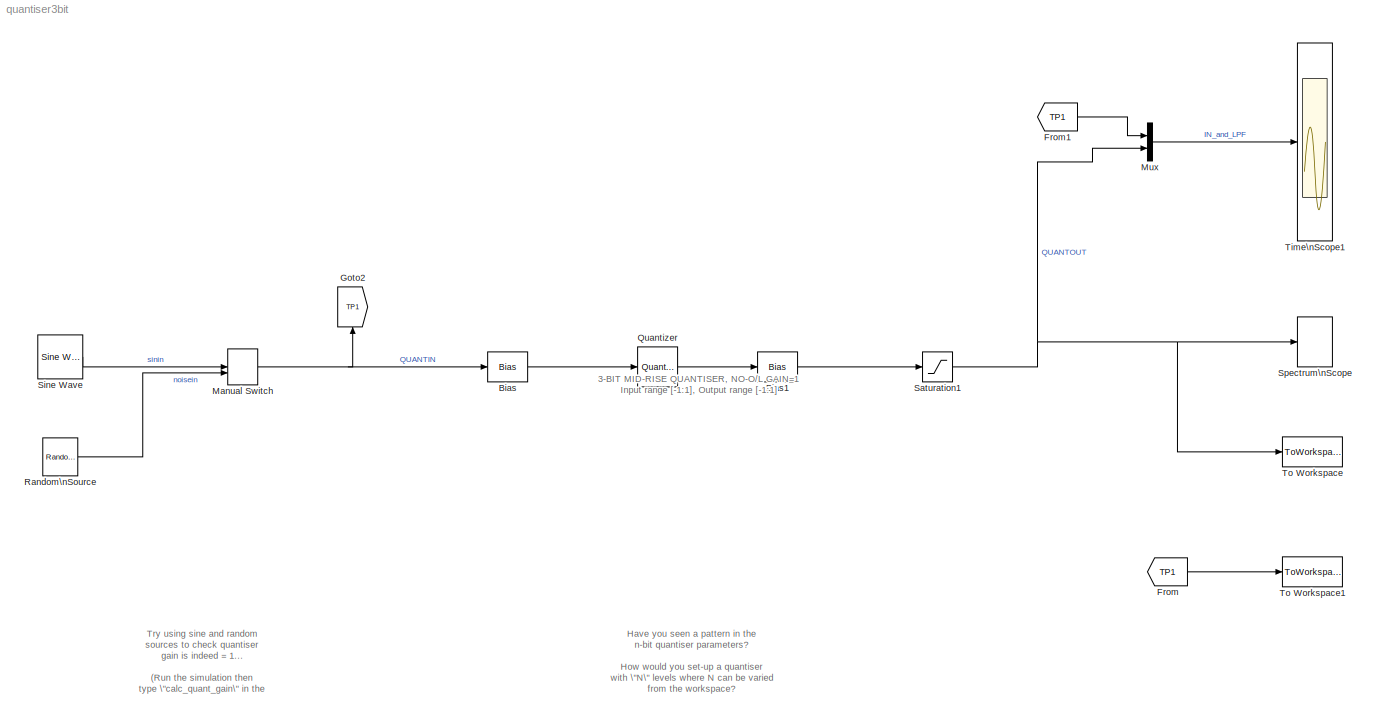
MODEL quantiser3bit
KIND model
BLOCK [Bias] Bias
  AttributesFormatString = Need offset to give\\nMID-RISE quantiser
  Bias = 1/7
  SID = 15
  SaturateOnIntegerOverflow = off
BLOCK [Bias] Bias1
  AttributesFormatString = Shift outputs to\\n...,-9/7,-1,-5/7,-3/7,-1/7,1/7,3/7,...
  Bias = -1/7
  SID = 35
  SaturateOnIntegerOverflow = off
BLOCK [From] From
  GotoTag = TP1
  SID = 48
BLOCK [From] From1
  GotoTag = TP1
  SID = 49
BLOCK [Goto] Goto2
  GotoTag = TP1
  SID = 46
BLOCK [ManualSwitch] Manual Switch
  SID = 58
BLOCK [Mux] Mux
  DisplayOption = bar
  Inputs = 2
  Ports = [2, 1]
  SID = 24
BLOCK [Quantizer] Quantizer
  AttributesFormatString = Interval set to 2/7, so get\\noutputs ..., -4/7, -2/7, 0, 2/7, 4/7,...
  LinearizeAsGain = off
  QuantizationInterval = 2/7
  SID = 4
BLOCK [Reference] Random\nSource  REF=dspsrcs4/Random\nSource
  CltLength = 12
  DataType = Double
  IsInherit = off
  MaxVal = 1.5
  MeanVal = 0
  MinVal = -1.5
  NormMethod = Ziggurat
  OutComplex = Real
  Ports = [0, 1]
  RepMode = Not repeatable
  SID = 57
  SampFrame = 1
  SampMode = Discrete
  SampTime = 1/100
  SourceBlock = dspsrcs4/Random\nSource
  SourceType = Random Source
  SrcType = Uniform
  UserData = DataTag0
  UserDataPersistent = on
  VarVal = 1
  rawSeed = 1
BLOCK [Saturate] Saturation1
  AttributesFormatString = Limit quantiser\\noutput to +/-1
  InputPortMap = u0
  LowerLimit = -1
  Ports = [1, 1]
  SID = 33
  UpperLimit = 1
BLOCK [Reference] Sine Wave  REF=dspsrcs4/Sine Wave
  Amplitude = 1.05
  CompMethod = Trigonometric fcn
  Frequency = 0.5
  LastOutDataTypeStr = double
  OutComplex = Real
  OutDataTypeStr = double
  Phase = 0
  Ports = [0, 1]
  ResetState = Restart at time zero
  SID = 55
  SampleMode = Discrete
  SampleTime = 1/100
  SamplesPerFrame = 1
  SourceBlock = dspsrcs4/Sine Wave
  SourceType = Sine Wave
  TableSize = Speed
  additionalParams = off
  allowOverrides = on
  dataType = double
  fracBitsMode = Best precision
  numFracBits = 15
  udDataType = sfix(16)
  wordLen = 16
BLOCK [SpectrumAnalyzer] Spectrum\nScope
  CloseFcn = scopeextensions.ScopeBlock.callback(gcbh, 'onBlockClose');
  CopyFcn = scopeextensions.ScopeBlock.callback(gcbh, 'onBlockCopy', gcbh);
  DeleteFcn = scopeextensions.ScopeBlock.callback(gcbh, 'onBlockDelete');
  NameChangeFcn = scopeextensions.ScopeBlock.callback(gcbh, 'onBlockRename');
  Ports = [1]
  PreDeleteFcn = scopeextensions.ScopeBlock.callback(gcbh, 'onBlockPreDelete');
  PreSaveFcn = scopeextensions.ScopeBlock.callback(gcbh, 'onModelSave');
  SID = 21
  UserData = DataTag1
  UserDataPersistent = on
BLOCK [Scope] Time\nScope1
  DataFormat = Structure
  Floating = off
  MaxDataPoints = 100000
  NumInputPorts = 1
  Ports = [1]
  SID = 38
  SampleTime = 0
  SaveName = ScopeData1
  ShowLegends = off
  TimeRange = 250
  ZoomMode = xonly
BLOCK [ToWorkspace] To Workspace
  AttributesFormatString = Export SDM output\\nto workspace for\\npost-processing
  MaxDataPoints = inf
  Ports = [1]
  SID = 31
  SampleTime = -1
  VariableName = Qout
BLOCK [ToWorkspace] To Workspace1
  AttributesFormatString = Export Quant' input\\nto workspace for\\npost-processing\\n(e.g quantiser gain)
  MaxDataPoints = inf
  Ports = [1]
  SID = 43
  SampleTime = -1
  VariableName = Qin
ANNOTATION (root): 3-BIT MID-RISE QUANTISER, NO-O/L GAIN=1 \nInput range [-1:1], Output range [-1:1]\n\n\n\n\n\n\n\n\n\n\n\n
ANNOTATION (root): Have you seen a pattern in the\nn-bit quantiser parameters?\n\nHow would you set-up a quantiser\nwith \"N\" levels where N can be varied\nfrom the workspace?\n\nN need not be a power of 2, and some N\nmay dictate a mid-tread design
ANNOTATION (root): Try using sine and random\nsources to check quantiser\ngain is indeed = 1...\n\n(Run the simulation then\ntype \"calc_quant_gain\" in the\ncommand_window)\n\n...what is the no-overload range?
LINE Bias1:1 -> Saturation1:1
LINE Bias:1 -> Quantizer:1
LINE From1:1 -> Mux:1
LINE From:1 -> To Workspace1:1
NET Manual Switch:1 -> Bias:1, Goto2:1
LINE Mux:1 -> Time\nScope1:1
LINE Quantizer:1 -> Bias1:1
LINE Random\nSource:1 -> Manual Switch:2
NET Saturation1:1 -> Mux:2, Spectrum\nScope:1, To Workspace:1
LINE Sine Wave:1 -> Manual Switch:1
note: NET lines group one-source signal fan-out (src -> all destinations, sorted); 1:1 wires keep LINE
